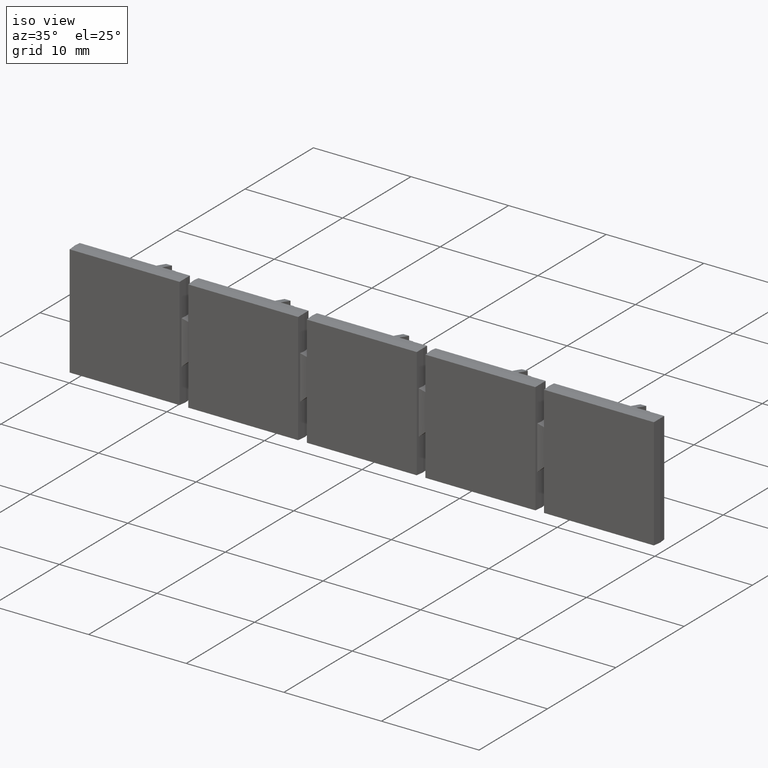
[diagram: clean part render]
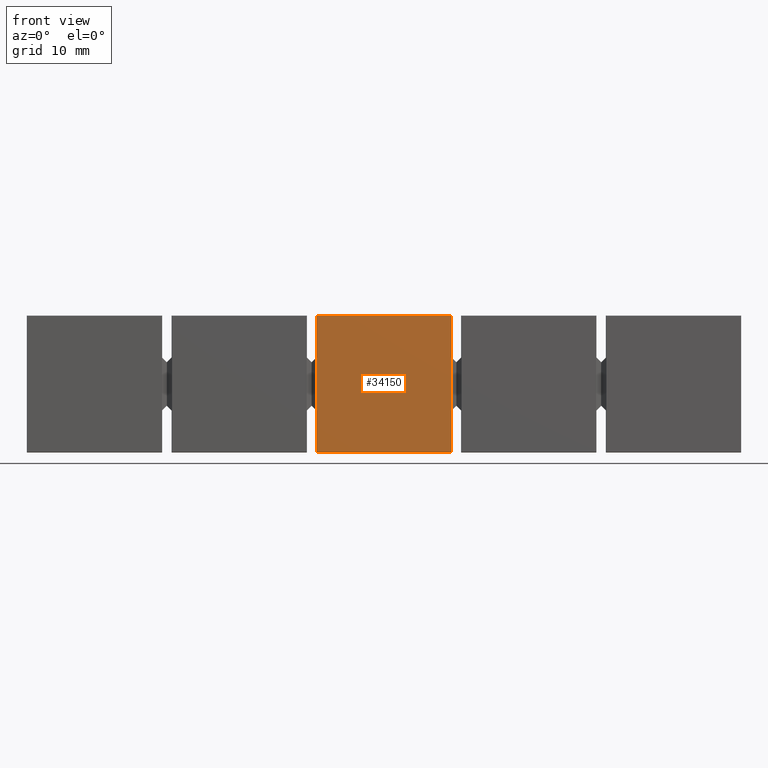
[diagram: tour spotlight — one face highlighted and labeled with its STEP entity id]
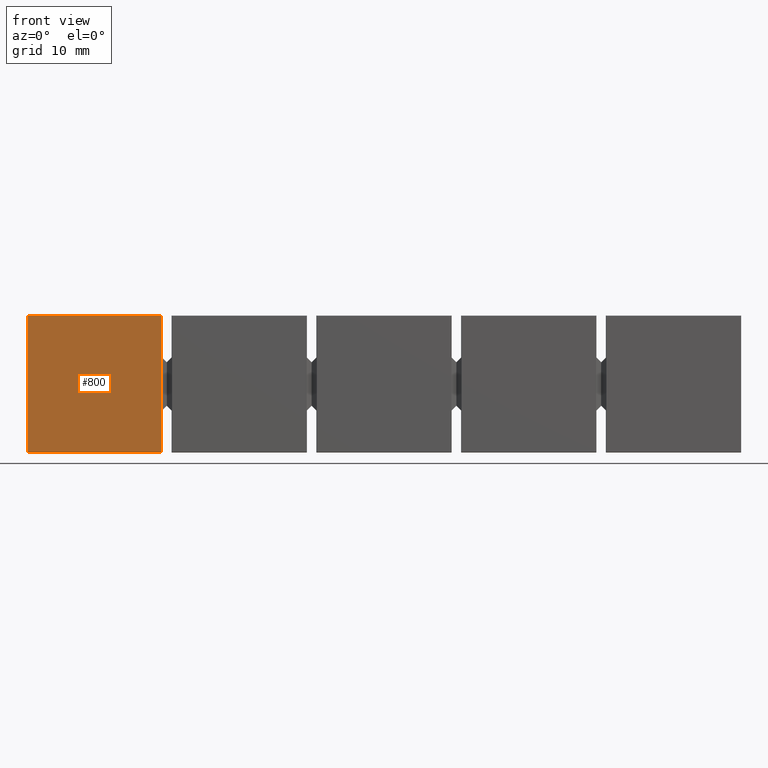
[diagram: tour spotlight — one face highlighted and labeled with its STEP entity id]
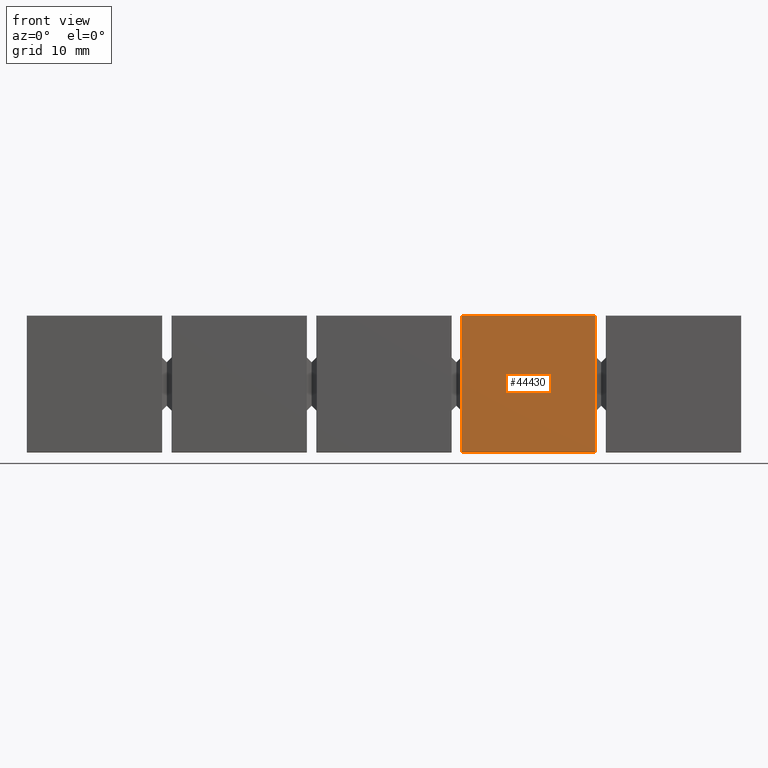
[diagram: tour spotlight — one face highlighted and labeled with its STEP entity id]
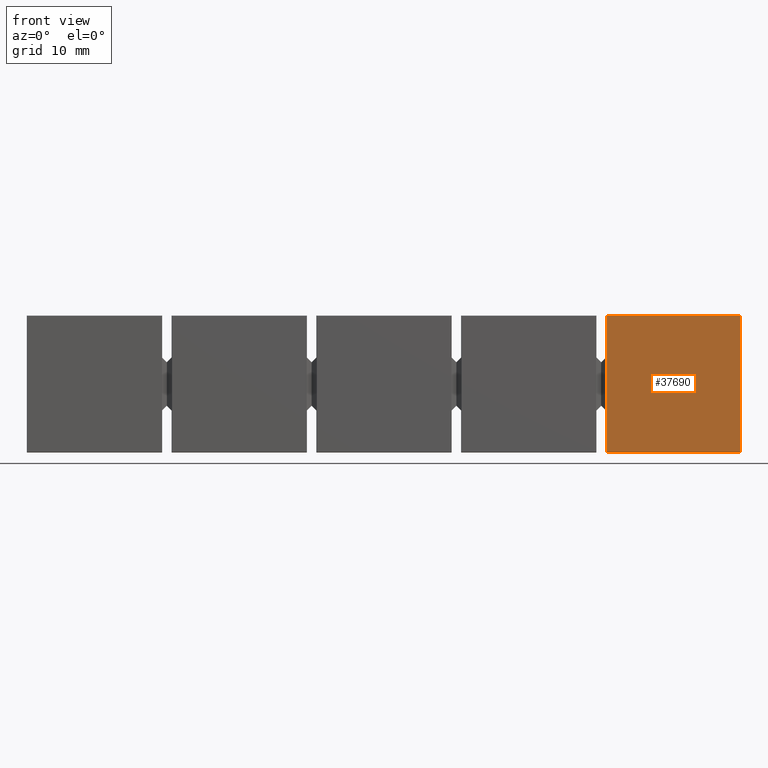
[diagram: tour spotlight — one face highlighted and labeled with its STEP entity id]
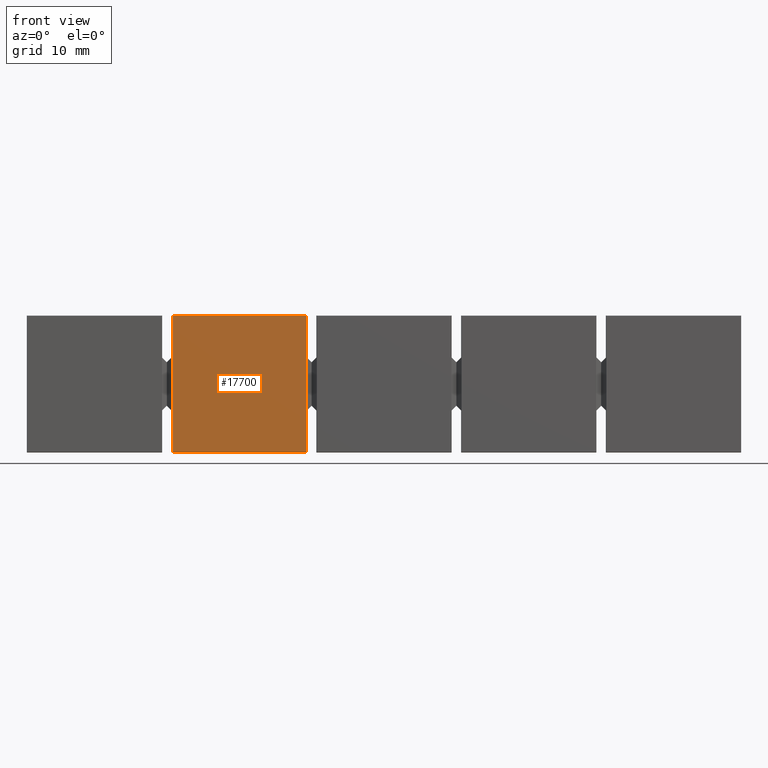
[diagram: tour spotlight — one face highlighted and labeled with its STEP entity id]
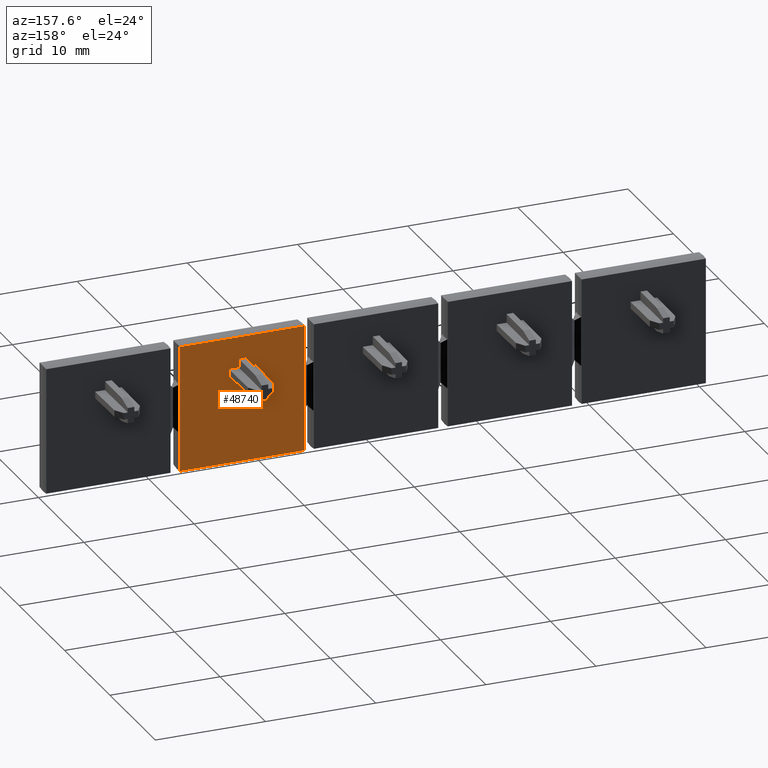
[diagram: tour spotlight — one face highlighted and labeled with its STEP entity id]
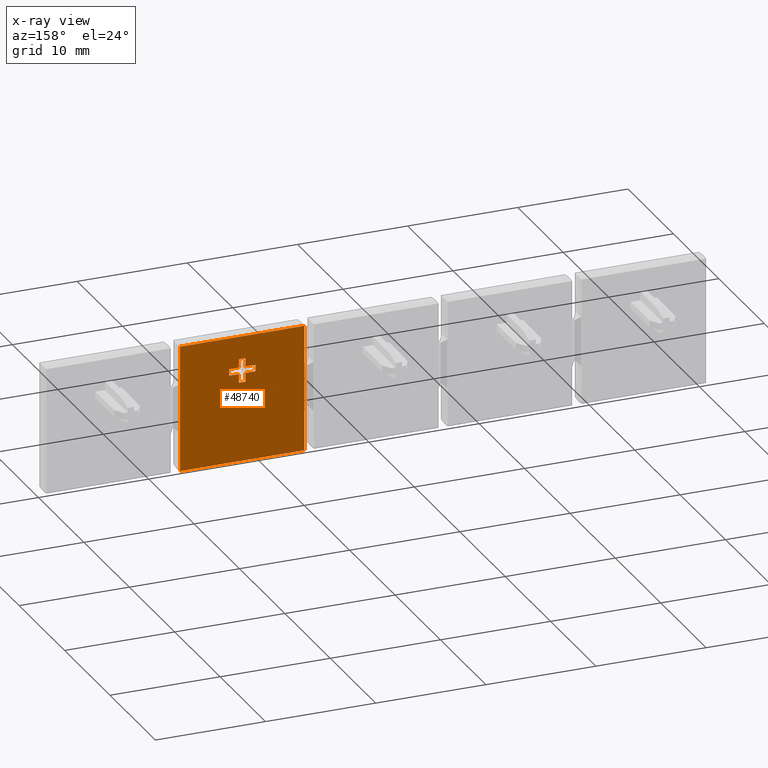
[diagram: x-ray of the same camera — body ghosted, this tour face saturated]
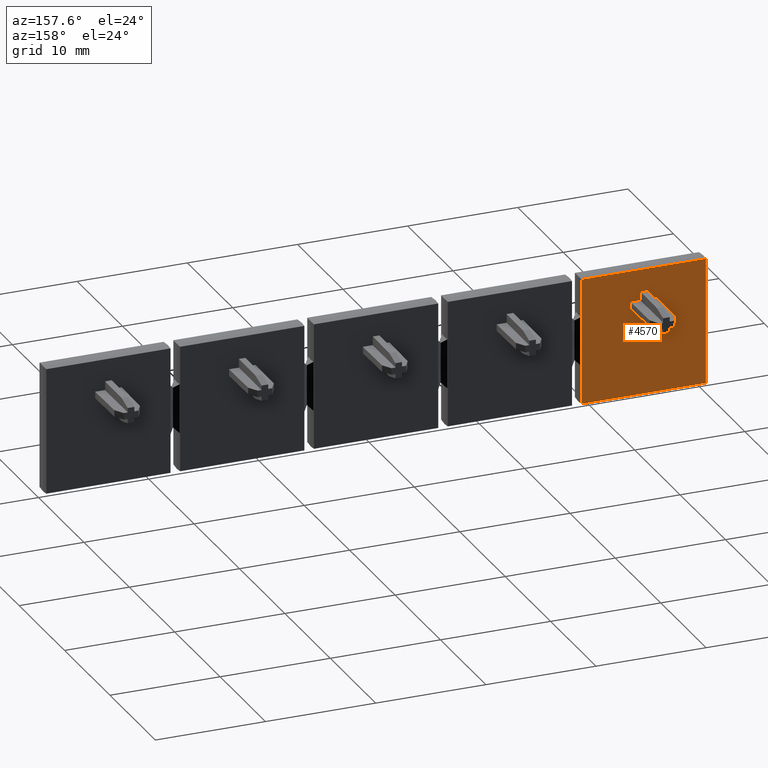
[diagram: tour spotlight — one face highlighted and labeled with its STEP entity id]
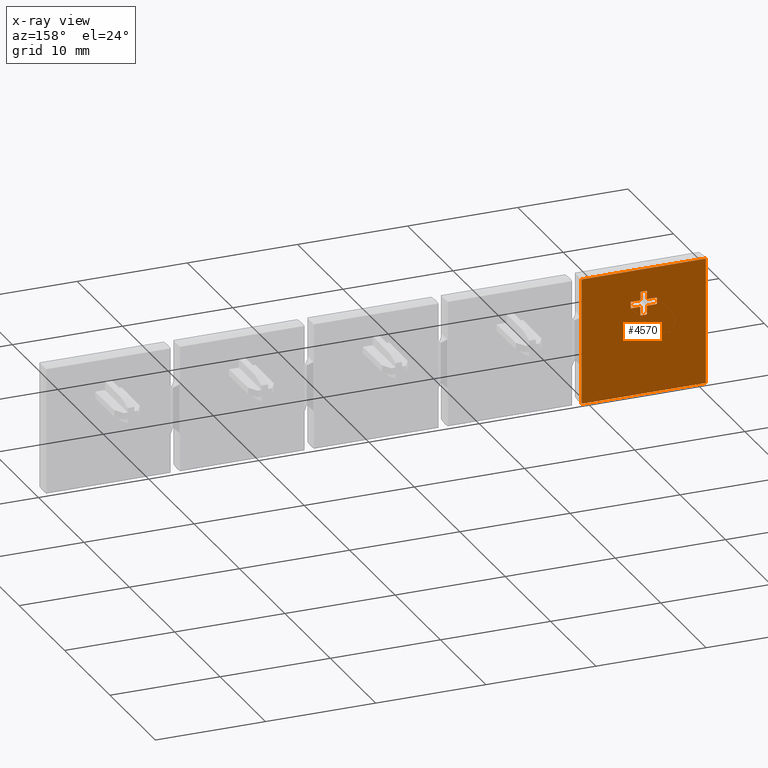
[diagram: x-ray of the same camera — body ghosted, this tour face saturated]
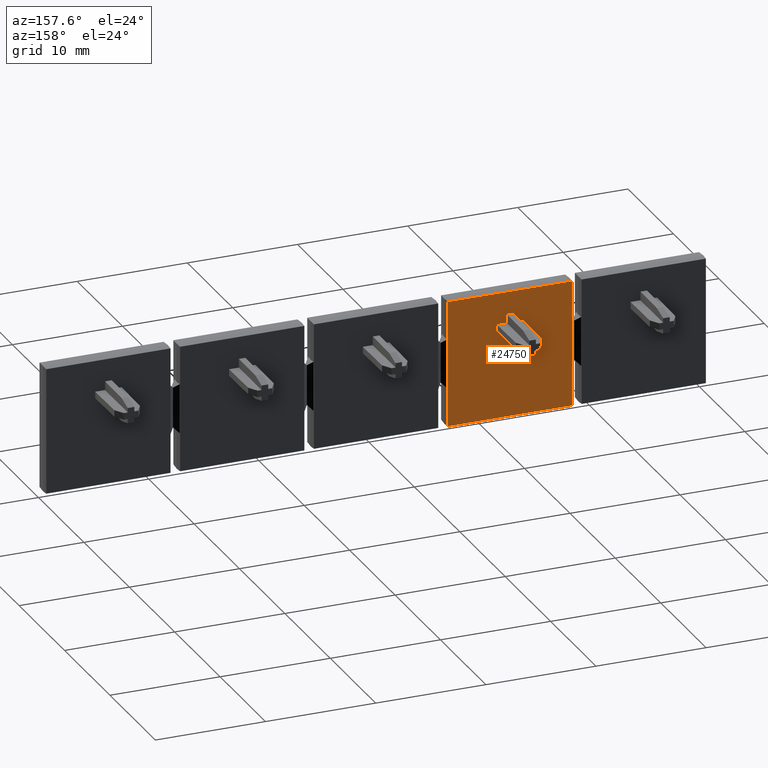
[diagram: tour spotlight — one face highlighted and labeled with its STEP entity id]
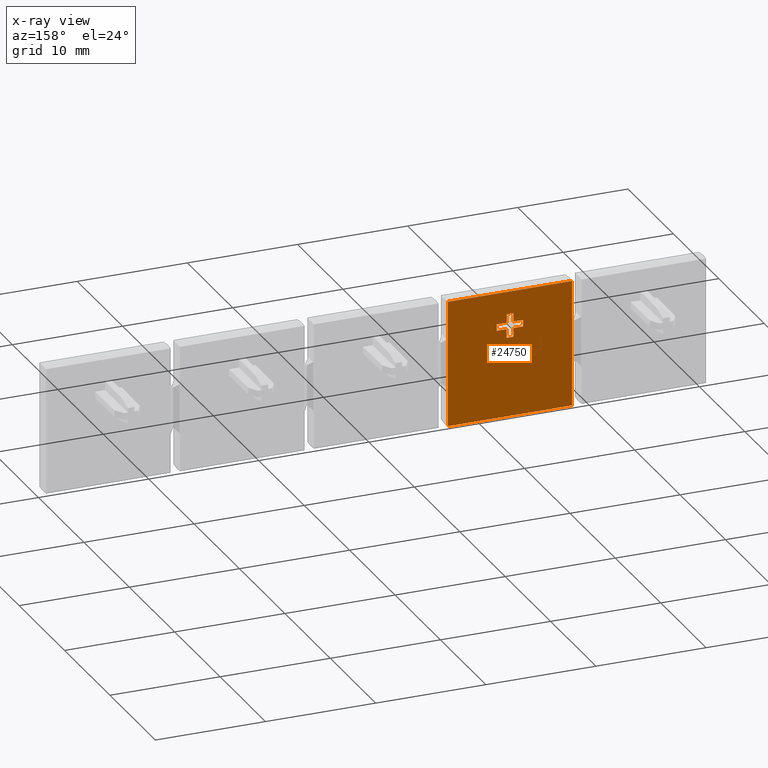
[diagram: x-ray of the same camera — body ghosted, this tour face saturated]
A machine part: a face-by-face anatomy tour. The part has 167 B-rep faces; the first image is the clean iso view, then the 8 largest visible faces are spotlighted one at a time (largest first), each with its STEP entity span.

Face 1 — front view, entity #34150. In plain terms, the highlighted planar face has unit normal (-0, -1, 0).
Definition (entity closure, byte-faithful):
#27400=CARTESIAN_POINT('',(25.1869785549055,4.41950785562666,
32.349763121726));
#27410=DIRECTION('',(-1.,1.95375257496095E-24,2.11420675839844E-12));
#27420=VECTOR('',#27410,1.);
#27430=LINE('',#27400,#27420);
#27440=CARTESIAN_POINT('',(24.5724989468758,4.41950785562666,
32.3497631217273));
#27450=VERTEX_POINT('',#27440);
#27460=CARTESIAN_POINT('',(13.1629727239028,4.41950785562668,
32.3497631217514));
#27470=VERTEX_POINT('',#27460);
#27480=EDGE_CURVE('',#27450,#27470,#27430,.T.);
#29270=CARTESIAN_POINT('',(13.162972723879,4.41950785562208,
21.0902368782979));
#29280=VERTEX_POINT('',#29270);
#29310=CARTESIAN_POINT('',(13.1629727239478,4.41950785563537,
53.670000000052));
#29320=DIRECTION('',(2.11383437872987E-12,4.08396006638896E-13,1.));
#29330=VECTOR('',#29320,1.);
#29340=LINE('',#29310,#29330);
#29350=EDGE_CURVE('',#29280,#27470,#29340,.T.);
#33300=CARTESIAN_POINT('',(24.572498946852,4.41950785562206,
21.0902368782738));
#33310=VERTEX_POINT('',#33300);
#33340=CARTESIAN_POINT('',(25.1869785549356,4.41950785562207,
21.0902368782725));
#33350=DIRECTION('',(1.,-1.95344841822176E-24,-2.1134619990613E-12));
#33360=VECTOR('',#33350,1.);
#33370=LINE('',#33340,#33360);
#33380=EDGE_CURVE('',#29280,#33310,#33370,.T.);
#33990=CARTESIAN_POINT('',(18.0177358661239,4.4195078556244,
26.7950000000223));
#34000=DIRECTION('',(1.09031897762206E-24,1.,-4.08396006638896E-13));
#34010=DIRECTION('',(-1.,0.,-2.6697591550794E-12));
#34020=AXIS2_PLACEMENT_3D('',#33990,#34000,#34010);
#34030=PLANE('',#34020);
#34040=ORIENTED_EDGE('',*,*,#29350,.T.);
#34050=ORIENTED_EDGE('',*,*,#33380,.F.);
#34060=CARTESIAN_POINT('',(24.5724989469209,4.41950785563537,
53.6700000000825));
#34070=DIRECTION('',(2.11383437872987E-12,4.08396006638896E-13,1.));
#34080=VECTOR('',#34070,1.);
#34090=LINE('',#34060,#34080);
#34100=EDGE_CURVE('',#33310,#27450,#34090,.T.);
#34110=ORIENTED_EDGE('',*,*,#34100,.F.);
#34120=ORIENTED_EDGE('',*,*,#27480,.F.);
#34130=EDGE_LOOP('',(#34120,#34110,#34050,#34040));
#34140=FACE_OUTER_BOUND('',#34130,.T.);
#34150=ADVANCED_FACE('',(#34140),#34030,.T.);

Face 2 — front view, entity #800. In plain terms, the highlighted planar face has unit normal (-0, -1, 0).
Definition (entity closure, byte-faithful):
#410=CARTESIAN_POINT('',(19.2111722116261,4.41950785552249,
51.0950000000255));
#420=DIRECTION('',(1.09031897762206E-24,1.,-4.08396006638896E-13));
#430=DIRECTION('',(-1.,0.,-2.6697591550794E-12));
#440=AXIS2_PLACEMENT_3D('',#410,#420,#430);
#450=PLANE('',#440);
#460=CARTESIAN_POINT('',(24.5724989468776,4.41950785552354,
53.6700000000825));
#470=DIRECTION('',(2.11383437872987E-12,4.08396006638896E-13,1.));
#480=VECTOR('',#470,1.);
#490=LINE('',#460,#480);
#500=CARTESIAN_POINT('',(24.5724989468601,4.41950785552016,
45.390236878268));
#510=VERTEX_POINT('',#500);
#520=CARTESIAN_POINT('',(24.5724989468839,4.41950785552476,
56.6497631217273));
#530=VERTEX_POINT('',#520);
#540=EDGE_CURVE('',#510,#530,#490,.T.);
#550=ORIENTED_EDGE('',*,*,#540,.F.);
#560=CARTESIAN_POINT('',(25.1869785548406,4.41950785552476,
56.6497631217319));
#570=DIRECTION('',(-1.,1.95375257496095E-24,2.11420675839844E-12));
#580=VECTOR('',#570,1.);
#590=LINE('',#560,#580);
#600=CARTESIAN_POINT('',(13.1629727238992,4.41950785552476,
56.6497631217514));
#610=VERTEX_POINT('',#600);
#620=EDGE_CURVE('',#530,#610,#590,.T.);
#630=ORIENTED_EDGE('',*,*,#620,.F.);
#640=CARTESIAN_POINT('',(13.1629727238929,4.41950785552354,
53.670000000052));
#650=DIRECTION('',(2.11383437872987E-12,4.08396006638896E-13,1.));
#660=VECTOR('',#650,1.);
#670=LINE('',#640,#660);
#680=CARTESIAN_POINT('',(13.1629727238754,4.41950785552016,
45.3902368782979));
#690=VERTEX_POINT('',#680);
#700=EDGE_CURVE('',#690,#610,#670,.T.);
#710=ORIENTED_EDGE('',*,*,#700,.T.);
#720=CARTESIAN_POINT('',(25.1869785548707,4.41950785552016,
45.3902368782667));
#730=DIRECTION('',(1.,-1.95344841822176E-24,-2.1134619990613E-12));
#740=VECTOR('',#730,1.);
#750=LINE('',#720,#740);
#760=EDGE_CURVE('',#690,#510,#750,.T.);
#770=ORIENTED_EDGE('',*,*,#760,.F.);
#780=EDGE_LOOP('',(#770,#710,#630,#550));
#790=FACE_OUTER_BOUND('',#780,.T.);
#800=ADVANCED_FACE('',(#790),#450,.T.);

Face 3 — front view, entity #44430. In plain terms, the highlighted planar face has unit normal (-0, -1, 0).
Definition (entity closure, byte-faithful):
#38160=CARTESIAN_POINT('',(25.1869785549379,4.4195078556217,
20.199763121726));
#38170=DIRECTION('',(-1.,1.95375257496095E-24,2.11420675839844E-12));
#38180=VECTOR('',#38170,1.);
#38190=LINE('',#38160,#38180);
#38200=CARTESIAN_POINT('',(24.5724989468747,4.4195078556217,
20.1997631217273));
#38210=VERTEX_POINT('',#38200);
#38220=CARTESIAN_POINT('',(13.1629727239016,4.4195078556217,
20.1997631217514));
#38230=VERTEX_POINT('',#38220);
#38240=EDGE_CURVE('',#38210,#38230,#38190,.T.);
#39760=CARTESIAN_POINT('',(13.1629727238778,4.41950785561711,
8.94023687829792));
#39770=VERTEX_POINT('',#39760);
#39800=CARTESIAN_POINT('',(13.1629727239724,4.41950785563538,
53.670000000052));
#39810=DIRECTION('',(2.11383437872987E-12,4.08396006638896E-13,1.));
#39820=VECTOR('',#39810,1.);
#39830=LINE('',#39800,#39820);
#39840=EDGE_CURVE('',#39770,#38230,#39830,.T.);
#43880=CARTESIAN_POINT('',(24.5724989468509,4.4195078556171,
8.94023687827382));
#43890=VERTEX_POINT('',#43880);
#43920=CARTESIAN_POINT('',(25.186978554968,4.41950785561711,
8.94023687827251));
#43930=DIRECTION('',(1.,-1.95344841822176E-24,-2.1134619990613E-12));
#43940=VECTOR('',#43930,1.);
#43950=LINE('',#43920,#43940);
#43960=EDGE_CURVE('',#39770,#43890,#43950,.T.);
#44270=CARTESIAN_POINT('',(18.0177358661227,4.41950785561944,
14.6450000000223));
#44280=DIRECTION('',(1.09031897762206E-24,1.,-4.08396006638896E-13));
#44290=DIRECTION('',(-1.,0.,-2.6697591550794E-12));
#44300=AXIS2_PLACEMENT_3D('',#44270,#44280,#44290);
#44310=PLANE('',#44300);
#44320=CARTESIAN_POINT('',(24.5724989469454,4.41950785563537,
53.6700000000825));
#44330=DIRECTION('',(2.11383437872987E-12,4.08396006638896E-13,1.));
#44340=VECTOR('',#44330,1.);
#44350=LINE('',#44320,#44340);
#44360=EDGE_CURVE('',#43890,#38210,#44350,.T.);
#44370=ORIENTED_EDGE('',*,*,#44360,.F.);
#44380=ORIENTED_EDGE('',*,*,#38240,.F.);
#44390=ORIENTED_EDGE('',*,*,#39840,.T.);
#44400=ORIENTED_EDGE('',*,*,#43960,.F.);
#44410=EDGE_LOOP('',(#44400,#44390,#44380,#44370));
#44420=FACE_OUTER_BOUND('',#44410,.T.);
#44430=ADVANCED_FACE('',(#44420),#44310,.T.);

Face 4 — front view, entity #37690. In plain terms, the highlighted planar face has unit normal (-0, -1, 0).
Definition (entity closure, byte-faithful):
#37300=CARTESIAN_POINT('',(18.0177358661216,4.41950785561447,
2.4950000000223));
#37310=DIRECTION('',(1.09031897762206E-24,1.,-4.08396006638896E-13));
#37320=DIRECTION('',(-1.,0.,-2.6697591550794E-12));
#37330=AXIS2_PLACEMENT_3D('',#37300,#37310,#37320);
#37340=PLANE('',#37330);
#37350=CARTESIAN_POINT('',(13.1629727239969,4.41950785563537,
53.670000000052));
#37360=DIRECTION('',(2.11383437872987E-12,4.08396006638896E-13,1.));
#37370=VECTOR('',#37360,1.);
#37380=LINE('',#37350,#37370);
#37390=CARTESIAN_POINT('',(13.1629727238767,4.41950785561214,
-3.20976312170207));
#37400=VERTEX_POINT('',#37390);
#37410=CARTESIAN_POINT('',(13.1629727239005,4.41950785561674,
8.04976312175142));
#37420=VERTEX_POINT('',#37410);
#37430=EDGE_CURVE('',#37400,#37420,#37380,.T.);
#37440=ORIENTED_EDGE('',*,*,#37430,.T.);
#37450=CARTESIAN_POINT('',(25.1869785550004,4.41950785561214,
-3.20976312172748));
#37460=DIRECTION('',(1.,-1.95344841822176E-24,-2.1134619990613E-12));
#37470=VECTOR('',#37460,1.);
#37480=LINE('',#37450,#37470);
#37490=CARTESIAN_POINT('',(24.5724989468498,4.41950785561214,
-3.20976312172618));
#37500=VERTEX_POINT('',#37490);
#37510=EDGE_CURVE('',#37400,#37500,#37480,.T.);
#37520=ORIENTED_EDGE('',*,*,#37510,.F.);
#37530=CARTESIAN_POINT('',(24.57249894697,4.41950785563537,
53.6700000000825));
#37540=DIRECTION('',(2.11383437872987E-12,4.08396006638896E-13,1.));
#37550=VECTOR('',#37540,1.);
#37560=LINE('',#37530,#37550);
#37570=CARTESIAN_POINT('',(24.5724989468736,4.41950785561674,
8.0497631217273));
#37580=VERTEX_POINT('',#37570);
#37590=EDGE_CURVE('',#37500,#37580,#37560,.T.);
#37600=ORIENTED_EDGE('',*,*,#37590,.F.);
#37610=CARTESIAN_POINT('',(25.1869785549704,4.41950785561674,
8.049763121726));
#37620=DIRECTION('',(-1.,1.95375257496095E-24,2.11420675839844E-12));
#37630=VECTOR('',#37620,1.);
#37640=LINE('',#37610,#37630);
#37650=EDGE_CURVE('',#37580,#37420,#37640,.T.);
#37660=ORIENTED_EDGE('',*,*,#37650,.F.);
#37670=EDGE_LOOP('',(#37660,#37600,#37520,#37440));
#37680=FACE_OUTER_BOUND('',#37670,.T.);
#37690=ADVANCED_FACE('',(#37680),#37340,.T.);

Face 5 — front view, entity #17700. In plain terms, the highlighted planar face has unit normal (-0, -1, 0).
Definition (entity closure, byte-faithful):
#8470=CARTESIAN_POINT('',(25.1869785548731,4.41950785563163,
44.499763121726));
#8480=DIRECTION('',(-1.,1.95375257496095E-24,2.11420675839844E-12));
#8490=VECTOR('',#8480,1.);
#8500=LINE('',#8470,#8490);
#8510=CARTESIAN_POINT('',(24.5724989468769,4.41950785563163,
44.4997631217273));
#8520=VERTEX_POINT('',#8510);
#8530=CARTESIAN_POINT('',(13.1629727239039,4.41950785563163,
44.4997631217514));
#8540=VERTEX_POINT('',#8530);
#8550=EDGE_CURVE('',#8520,#8540,#8500,.T.);
#11290=CARTESIAN_POINT('',(13.1629727238801,4.41950785562703,
33.2402368782979));
#11300=VERTEX_POINT('',#11290);
#11330=CARTESIAN_POINT('',(13.1629727239233,4.41950785563537,
53.670000000052));
#11340=DIRECTION('',(2.11383437872987E-12,4.08396006638896E-13,1.));
#11350=VECTOR('',#11340,1.);
#11360=LINE('',#11330,#11350);
#11370=EDGE_CURVE('',#11300,#8540,#11360,.T.);
#16050=CARTESIAN_POINT('',(24.5724989468531,4.41950785562703,
33.2402368782738));
#16060=VERTEX_POINT('',#16050);
#16090=CARTESIAN_POINT('',(25.1869785549031,4.41950785562703,
33.2402368782725));
#16100=DIRECTION('',(1.,-1.95344841822176E-24,-2.1134619990613E-12));
#16110=VECTOR('',#16100,1.);
#16120=LINE('',#16090,#16110);
#16130=EDGE_CURVE('',#11300,#16060,#16120,.T.);
#17540=CARTESIAN_POINT('',(18.017735866125,4.41950785562936,
38.9450000000223));
#17550=DIRECTION('',(1.09031897762206E-24,1.,-4.08396006638896E-13));
#17560=DIRECTION('',(-1.,0.,-2.6697591550794E-12));
#17570=AXIS2_PLACEMENT_3D('',#17540,#17550,#17560);
#17580=PLANE('',#17570);
#17590=CARTESIAN_POINT('',(24.5724989468963,4.41950785563537,
53.6700000000825));
#17600=DIRECTION('',(2.11383437872987E-12,4.08396006638896E-13,1.));
#17610=VECTOR('',#17600,1.);
#17620=LINE('',#17590,#17610);
#17630=EDGE_CURVE('',#16060,#8520,#17620,.T.);
#17640=ORIENTED_EDGE('',*,*,#17630,.F.);
#17650=ORIENTED_EDGE('',*,*,#8550,.F.);
#17660=ORIENTED_EDGE('',*,*,#11370,.T.);
#17670=ORIENTED_EDGE('',*,*,#16130,.F.);
#17680=EDGE_LOOP('',(#17670,#17660,#17650,#17640));
#17690=FACE_OUTER_BOUND('',#17680,.T.);
#17700=ADVANCED_FACE('',(#17690),#17580,.T.);

Face 6 — auxiliary view, entity #48740. An x-ray twin of the same camera follows (body ghosted, this face saturated) — the face is partly hidden behind the body. In plain terms, the highlighted planar face has unit normal (0, 1, -0).
Definition (entity closure, byte-faithful):
#17190=CARTESIAN_POINT('',(25.1869785549498,2.91950785561962,
15.7699999999805));
#17200=DIRECTION('',(1.,-6.29799242864677E-15,2.67120862381053E-12));
#17210=VECTOR('',#17200,1.);
#17220=LINE('',#17190,#17210);
#17230=CARTESIAN_POINT('',(15.9677358661469,2.91950785561967,
15.7699999999559));
#17240=VERTEX_POINT('',#17230);
#17250=CARTESIAN_POINT('',(16.5677358661469,2.91950785561967,
15.7699999999566));
#17260=VERTEX_POINT('',#17250);
#17270=EDGE_CURVE('',#17240,#17260,#17220,.T.);
#21810=CARTESIAN_POINT('',(25.1869785549538,2.919507855619,
14.270000000009));
#21820=DIRECTION('',(1.,-6.29799242864736E-15,2.66975915507941E-12));
#21830=VECTOR('',#21820,1.);
#21840=LINE('',#21810,#21830);
#21850=CARTESIAN_POINT('',(16.5677358661509,2.91950785561906,
14.2699999999859));
#21860=VERTEX_POINT('',#21850);
#21870=CARTESIAN_POINT('',(17.367735866163,2.91950785561905,
14.2699999999881));
#21880=VERTEX_POINT('',#21870);
#21890=EDGE_CURVE('',#21860,#21880,#21840,.T.);
#28270=CARTESIAN_POINT('',(25.1869785549522,2.91950785561925,
14.8700000000089));
#28280=DIRECTION('',(-1.,6.29799242864736E-15,-2.66975915507941E-12));
#28290=VECTOR('',#28280,1.);
#28300=LINE('',#28270,#28290);
#28310=CARTESIAN_POINT('',(15.9677358661493,2.9195078556193,
14.8699999999843));
#28320=VERTEX_POINT('',#28310);
#28330=CARTESIAN_POINT('',(15.1677358661382,2.91950785561931,
14.8699999999822));
#28340=VERTEX_POINT('',#28330);
#28350=EDGE_CURVE('',#28320,#28340,#28300,.T.);
#28660=CARTESIAN_POINT('',(15.9677358660457,2.91950785563515,
53.6700000000601));
#28670=DIRECTION('',(2.6697591550794E-12,-4.08396006638927E-13,-1.));
#28680=VECTOR('',#28670,1.);
#28690=LINE('',#28660,#28680);
#28700=CARTESIAN_POINT('',(15.9677358661509,2.91950785561906,
14.2699999999843));
#28710=VERTEX_POINT('',#28700);
#28720=CARTESIAN_POINT('',(15.9677358661533,2.91950785561869,
13.3700000000127));
#28730=VERTEX_POINT('',#28720);
#28740=EDGE_CURVE('',#28710,#28730,#28690,.T.);
#31790=CARTESIAN_POINT('',(16.5677358661533,2.91950785561869,
13.3700000000143));
#31800=VERTEX_POINT('',#31790);
#31830=CARTESIAN_POINT('',(25.1869785549562,2.91950785561863,
13.3700000000373));
#31840=DIRECTION('',(-1.,6.29799242864795E-15,-2.66830968634828E-12));
#31850=VECTOR('',#31840,1.);
#31860=LINE('',#31830,#31850);
#31870=EDGE_CURVE('',#31800,#28730,#31860,.T.);
#33730=CARTESIAN_POINT('',(17.3677358660578,2.91950785563514,
53.6700000000639));
#33740=DIRECTION('',(2.66963668573623E-12,-4.08396006638927E-13,-1.));
#33750=VECTOR('',#33740,1.);
#33760=LINE('',#33730,#33750);
#33770=CARTESIAN_POINT('',(17.3677358661614,2.9195078556193,
14.8699999999881));
#33780=VERTEX_POINT('',#33770);
#33790=EDGE_CURVE('',#33780,#21880,#33760,.T.);
#37970=CARTESIAN_POINT('',(15.1677358661398,2.91950785561907,
14.2699999999822));
#37980=VERTEX_POINT('',#37970);
#38010=CARTESIAN_POINT('',(15.1677358660336,2.91950785563515,
53.670000000058));
#38020=DIRECTION('',(-2.66988162442258E-12,4.08396006638927E-13,1.));
#38030=VECTOR('',#38020,1.);
#38040=LINE('',#38010,#38030);
#38050=EDGE_CURVE('',#37980,#28340,#38040,.T.);
#38650=CARTESIAN_POINT('',(13.1511106772693,2.9195078556215,
20.211625209376));
#38660=VERTEX_POINT('',#38650);
#38780=CARTESIAN_POINT('',(24.5843610344987,2.91950785562143,
20.2116252093518));
#38790=VERTEX_POINT('',#38780);
#38820=CARTESIAN_POINT('',(25.1869785549379,2.91950785562143,
20.2116252093506));
#38830=DIRECTION('',(-1.,6.29799243060081E-15,2.11341968318976E-12));
#38840=VECTOR('',#38830,1.);
#38850=LINE('',#38820,#38840);
#38860=EDGE_CURVE('',#38790,#38660,#38850,.T.);
#40200=CARTESIAN_POINT('',(13.15111067734,2.91950785563517,
53.6700000000526));
#40210=DIRECTION('',(-2.1134619990612E-12,-4.08396006638896E-13,-1.));
#40220=VECTOR('',#40210,1.);
#40230=LINE('',#40200,#40220);
#40240=CARTESIAN_POINT('',(13.1511106772455,2.9195078556169,
8.92837479067457));
#40250=VERTEX_POINT('',#40240);
#40260=EDGE_CURVE('',#38660,#40250,#40230,.T.);
#40680=CARTESIAN_POINT('',(16.5677358660457,2.91950785563515,
53.6700000000617));
#40690=DIRECTION('',(-2.6697591550794E-12,4.08396006638927E-13,1.));
#40700=VECTOR('',#40690,1.);
#40710=LINE('',#40680,#40700);
#40720=EDGE_CURVE('',#31800,#21860,#40710,.T.);
#41290=CARTESIAN_POINT('',(25.1869785549538,2.919507855619,
14.2700000000089));
#41300=DIRECTION('',(1.,-6.29799242864736E-15,2.66975915507941E-12));
#41310=VECTOR('',#41300,1.);
#41320=LINE('',#41290,#41310);
#41330=EDGE_CURVE('',#37980,#28710,#41320,.T.);
#41520=CARTESIAN_POINT('',(24.5843610344748,2.91950785561682,
8.92837479065042));
#41530=VERTEX_POINT('',#41520);
#41820=CARTESIAN_POINT('',(25.186978554968,2.91950785561682,
8.92837479064914));
#41830=DIRECTION('',(1.,-6.29799243060085E-15,-2.11350431493264E-12));
#41840=VECTOR('',#41830,1.);
#41850=LINE('',#41820,#41840);
#41860=EDGE_CURVE('',#40250,#41530,#41850,.T.);
#43110=CARTESIAN_POINT('',(24.5843610345694,2.9195078556351,
53.6700000000831));
#43120=DIRECTION('',(2.1134619990612E-12,4.08396006638896E-13,1.));
#43130=VECTOR('',#43120,1.);
#43140=LINE('',#43110,#43130);
#43150=EDGE_CURVE('',#41530,#38790,#43140,.T.);
#46650=CARTESIAN_POINT('',(15.9677358660457,2.91950785563515,
53.6700000000601));
#46660=DIRECTION('',(2.6697591550794E-12,-4.08396006638927E-13,-1.));
#46670=VECTOR('',#46660,1.);
#46680=LINE('',#46650,#46670);
#46690=EDGE_CURVE('',#17240,#28320,#46680,.T.);
#48370=CARTESIAN_POINT('',(19.517735845649,2.91950785562231,
22.2950000205383));
#48380=DIRECTION('',(-6.29799242973768E-15,-1.,4.0839600663891E-13));
#48390=DIRECTION('',(-1.,6.29799243060089E-15,2.11364818889553E-12));
#48400=AXIS2_PLACEMENT_3D('',#48370,#48380,#48390);
#48410=PLANE('',#48400);
#48420=CARTESIAN_POINT('',(16.5677358660457,2.91950785563515,
53.6700000000617));
#48430=DIRECTION('',(-2.6697591550794E-12,4.08396006638927E-13,1.));
#48440=VECTOR('',#48430,1.);
#48450=LINE('',#48420,#48440);
#48460=CARTESIAN_POINT('',(16.5677358661493,2.9195078556193,
14.869999999986));
#48470=VERTEX_POINT('',#48460);
#48480=EDGE_CURVE('',#48470,#17260,#48450,.T.);
#48490=ORIENTED_EDGE('',*,*,#48480,.F.);
#48500=ORIENTED_EDGE('',*,*,#17270,.T.);
#48510=ORIENTED_EDGE('',*,*,#46690,.F.);
#48520=ORIENTED_EDGE('',*,*,#28350,.F.);
#48530=ORIENTED_EDGE('',*,*,#38050,.T.);
#48540=ORIENTED_EDGE('',*,*,#41330,.F.);
#48550=ORIENTED_EDGE('',*,*,#28740,.F.);
#48560=ORIENTED_EDGE('',*,*,#31870,.T.);
#48570=ORIENTED_EDGE('',*,*,#40720,.F.);
#48580=ORIENTED_EDGE('',*,*,#21890,.F.);
#48590=ORIENTED_EDGE('',*,*,#33790,.T.);
#48600=CARTESIAN_POINT('',(25.1869785549522,2.91950785561925,
14.870000000009));
#48610=DIRECTION('',(-1.,6.29799242864736E-15,-2.66975915507941E-12));
#48620=VECTOR('',#48610,1.);
#48630=LINE('',#48600,#48620);
#48640=EDGE_CURVE('',#33780,#48470,#48630,.T.);
#48650=ORIENTED_EDGE('',*,*,#48640,.F.);
#48660=EDGE_LOOP('',(#48650,#48590,#48580,#48570,#48560,#48550,#48540,
#48530,#48520,#48510,#48500,#48490));
#48670=FACE_BOUND('',#48660,.T.);
#48680=ORIENTED_EDGE('',*,*,#43150,.T.);
#48690=ORIENTED_EDGE('',*,*,#41860,.T.);
#48700=ORIENTED_EDGE('',*,*,#40260,.T.);
#48710=ORIENTED_EDGE('',*,*,#38860,.T.);
#48720=EDGE_LOOP('',(#48710,#48700,#48690,#48680));
#48730=FACE_OUTER_BOUND('',#48720,.T.);
#48740=ADVANCED_FACE('',(#48670,#48730),#48410,.T.);

Face 7 — auxiliary view, entity #4570. An x-ray twin of the same camera follows (body ghosted, this face saturated) — the face is partly hidden behind the body. In plain terms, the highlighted planar face has unit normal (0, 1, -0).
Definition (entity closure, byte-faithful):
#920=CARTESIAN_POINT('',(13.1511106772727,2.91950785563639,
56.661625209376));
#930=VERTEX_POINT('',#920);
#960=CARTESIAN_POINT('',(13.1511106772664,2.91950785563516,
53.6700000000526));
#970=DIRECTION('',(-2.1134619990612E-12,-4.08396006638896E-13,-1.));
#980=VECTOR('',#970,1.);
#990=LINE('',#960,#980);
#1000=CARTESIAN_POINT('',(13.1511106772489,2.91950785563178,
45.3783747906746));
#1010=VERTEX_POINT('',#1000);
#1020=EDGE_CURVE('',#930,#1010,#990,.T.);
#2850=CARTESIAN_POINT('',(16.5677358661567,2.91950785563357,
49.8200000000144));
#2860=VERTEX_POINT('',#2850);
#2890=CARTESIAN_POINT('',(25.1869785548589,2.91950785563352,
49.8200000000374));
#2900=DIRECTION('',(-1.,6.29799242864795E-15,-2.66830968634828E-12));
#2910=VECTOR('',#2900,1.);
#2920=LINE('',#2890,#2910);
#2930=CARTESIAN_POINT('',(15.9677358661567,2.91950785563357,
49.8200000000128));
#2940=VERTEX_POINT('',#2930);
#2950=EDGE_CURVE('',#2860,#2940,#2920,.T.);
#3280=CARTESIAN_POINT('',(15.9677358661464,2.91950785563515,
53.6700000000601));
#3290=DIRECTION('',(2.6697591550794E-12,-4.08396006638927E-13,-1.));
#3300=VECTOR('',#3290,1.);
#3310=LINE('',#3280,#3300);
#3320=CARTESIAN_POINT('',(15.9677358661543,2.91950785563394,
50.7199999999843));
#3330=VERTEX_POINT('',#3320);
#3340=EDGE_CURVE('',#3330,#2940,#3310,.T.);
#3450=CARTESIAN_POINT('',(19.5177358456524,2.9195078556372,
58.7450000205383));
#3460=DIRECTION('',(-6.29799242973768E-15,-1.,4.0839600663891E-13));
#3470=DIRECTION('',(-1.,6.29799243060089E-15,2.11364818889553E-12));
#3480=AXIS2_PLACEMENT_3D('',#3450,#3460,#3470);
#3490=PLANE('',#3480);
#3500=CARTESIAN_POINT('',(16.5677358661464,2.91950785563514,
53.6700000000617));
#3510=DIRECTION('',(-2.6697591550794E-12,4.08396006638927E-13,1.));
#3520=VECTOR('',#3510,1.);
#3530=LINE('',#3500,#3520);
#3540=CARTESIAN_POINT('',(16.5677358661527,2.91950785563418,
51.319999999986));
#3550=VERTEX_POINT('',#3540);
#3560=CARTESIAN_POINT('',(16.5677358661503,2.91950785563455,
52.2199999999575));
#3570=VERTEX_POINT('',#3560);
#3580=EDGE_CURVE('',#3550,#3570,#3530,.T.);
#3590=ORIENTED_EDGE('',*,*,#3580,.F.);
#3600=CARTESIAN_POINT('',(25.1869785548525,2.9195078556345,
52.2199999999806));
#3610=DIRECTION('',(1.,-6.29799242864677E-15,2.67120862381053E-12));
#3620=VECTOR('',#3610,1.);
#3630=LINE('',#3600,#3620);
#3640=CARTESIAN_POINT('',(15.9677358661503,2.91950785563455,
52.219999999955));
#3650=VERTEX_POINT('',#3640);
#3660=EDGE_CURVE('',#3650,#3570,#3630,.T.);
#3670=ORIENTED_EDGE('',*,*,#3660,.T.);
#3680=CARTESIAN_POINT('',(15.9677358661464,2.91950785563515,
53.6700000000601));
#3690=DIRECTION('',(2.6697591550794E-12,-4.08396006638927E-13,-1.));
#3700=VECTOR('',#3690,1.);
#3710=LINE('',#3680,#3700);
#3720=CARTESIAN_POINT('',(15.9677358661527,2.91950785563419,
51.3199999999843));
#3730=VERTEX_POINT('',#3720);
#3740=EDGE_CURVE('',#3650,#3730,#3710,.T.);
#3750=ORIENTED_EDGE('',*,*,#3740,.F.);
#3760=CARTESIAN_POINT('',(25.1869785548549,2.91950785563413,
51.320000000009));
#3770=DIRECTION('',(-1.,6.29799242864736E-15,-2.66975915507941E-12));
#3780=VECTOR('',#3770,1.);
#3790=LINE('',#3760,#3780);
#3800=CARTESIAN_POINT('',(15.1677358661416,2.91950785563419,
51.3199999999822));
#3810=VERTEX_POINT('',#3800);
#3820=EDGE_CURVE('',#3730,#3810,#3790,.T.);
#3830=ORIENTED_EDGE('',*,*,#3820,.F.);
#3840=CARTESIAN_POINT('',(15.1677358661344,2.91950785563515,
53.670000000058));
#3850=DIRECTION('',(-2.66988162442258E-12,4.08396006638927E-13,1.));
#3860=VECTOR('',#3850,1.);
#3870=LINE('',#3840,#3860);
#3880=CARTESIAN_POINT('',(15.1677358661422,2.91950785563395,
50.7199999999822));
#3890=VERTEX_POINT('',#3880);
#3900=EDGE_CURVE('',#3890,#3810,#3870,.T.);
#3910=ORIENTED_EDGE('',*,*,#3900,.T.);
#3920=CARTESIAN_POINT('',(25.1869785548565,2.91950785563388,
50.720000000009));
#3930=DIRECTION('',(1.,-6.29799242864736E-15,2.66975915507941E-12));
#3940=VECTOR('',#3930,1.);
#3950=LINE('',#3920,#3940);
#3960=EDGE_CURVE('',#3890,#3330,#3950,.T.);
#3970=ORIENTED_EDGE('',*,*,#3960,.F.);
#3980=ORIENTED_EDGE('',*,*,#3340,.F.);
#3990=ORIENTED_EDGE('',*,*,#2950,.T.);
#4000=CARTESIAN_POINT('',(16.5677358661464,2.91950785563514,
53.6700000000617));
#4010=DIRECTION('',(-2.6697591550794E-12,4.08396006638927E-13,1.));
#4020=VECTOR('',#4010,1.);
#4030=LINE('',#4000,#4020);
#4040=CARTESIAN_POINT('',(16.5677358661543,2.91950785563394,
50.719999999986));
#4050=VERTEX_POINT('',#4040);
#4060=EDGE_CURVE('',#2860,#4050,#4030,.T.);
#4070=ORIENTED_EDGE('',*,*,#4060,.F.);
#4080=CARTESIAN_POINT('',(25.1869785548565,2.91950785563388,
50.720000000009));
#4090=DIRECTION('',(1.,-6.29799242864736E-15,2.66975915507941E-12));
#4100=VECTOR('',#4090,1.);
#4110=LINE('',#4080,#4100);
#4120=CARTESIAN_POINT('',(17.3677358661663,2.91950785563393,
50.7199999999881));
#4130=VERTEX_POINT('',#4120);
#4140=EDGE_CURVE('',#4050,#4130,#4110,.T.);
#4150=ORIENTED_EDGE('',*,*,#4140,.F.);
#4160=CARTESIAN_POINT('',(17.3677358661585,2.91950785563514,
53.6700000000639));
#4170=DIRECTION('',(2.66963668573623E-12,-4.08396006638927E-13,-1.));
#4180=VECTOR('',#4170,1.);
#4190=LINE('',#4160,#4180);
#4200=CARTESIAN_POINT('',(17.3677358661638,2.91950785563418,
51.3199999999881));
#4210=VERTEX_POINT('',#4200);
#4220=EDGE_CURVE('',#4210,#4130,#4190,.T.);
#4230=ORIENTED_EDGE('',*,*,#4220,.T.);
#4240=CARTESIAN_POINT('',(25.1869785548549,2.91950785563413,
51.320000000009));
#4250=DIRECTION('',(-1.,6.29799242864736E-15,-2.66975915507941E-12));
#4260=VECTOR('',#4250,1.);
#4270=LINE('',#4240,#4260);
#4280=EDGE_CURVE('',#4210,#3550,#4270,.T.);
#4290=ORIENTED_EDGE('',*,*,#4280,.F.);
#4300=EDGE_LOOP('',(#4290,#4230,#4150,#4070,#3990,#3980,#3970,#3910,
#3830,#3750,#3670,#3590));
#4310=FACE_BOUND('',#4300,.T.);
#4320=ORIENTED_EDGE('',*,*,#1020,.T.);
#4330=CARTESIAN_POINT('',(25.1869785548406,2.91950785563631,
56.6616252093506));
#4340=DIRECTION('',(-1.,6.29799243060081E-15,2.11341968318976E-12));
#4350=VECTOR('',#4340,1.);
#4360=LINE('',#4330,#4350);
#4370=CARTESIAN_POINT('',(24.5843610345021,2.91950785563632,
56.6616252093519));
#4380=VERTEX_POINT('',#4370);
#4390=EDGE_CURVE('',#4380,#930,#4360,.T.);
#4400=ORIENTED_EDGE('',*,*,#4390,.T.);
#4410=CARTESIAN_POINT('',(24.5843610344958,2.91950785563509,
53.6700000000831));
#4420=DIRECTION('',(2.1134619990612E-12,4.08396006638896E-13,1.));
#4430=VECTOR('',#4420,1.);
#4440=LINE('',#4410,#4430);
#4450=CARTESIAN_POINT('',(24.5843610344782,2.91950785563171,
45.3783747906504));
#4460=VERTEX_POINT('',#4450);
#4470=EDGE_CURVE('',#4460,#4380,#4440,.T.);
#4480=ORIENTED_EDGE('',*,*,#4470,.T.);
#4490=CARTESIAN_POINT('',(25.1869785548707,2.9195078556317,
45.3783747906491));
#4500=DIRECTION('',(1.,-6.29799243060085E-15,-2.11350431493264E-12));
#4510=VECTOR('',#4500,1.);
#4520=LINE('',#4490,#4510);
#4530=EDGE_CURVE('',#1010,#4460,#4520,.T.);
#4540=ORIENTED_EDGE('',*,*,#4530,.T.);
#4550=EDGE_LOOP('',(#4540,#4480,#4400,#4320));
#4560=FACE_OUTER_BOUND('',#4550,.T.);
#4570=ADVANCED_FACE('',(#4310,#4560),#3490,.T.);

Face 8 — auxiliary view, entity #24750. An x-ray twin of the same camera follows (body ghosted, this face saturated) — the face is partly hidden behind the body. In plain terms, the highlighted planar face has unit normal (0, 1, -0).
Definition (entity closure, byte-faithful):
#60=CARTESIAN_POINT('',(25.1869785548849,2.91950785562954,
40.0699999999806));
#70=DIRECTION('',(1.,-6.29799242864677E-15,2.67120862381053E-12));
#80=VECTOR('',#70,1.);
#90=LINE('',#60,#80);
#100=CARTESIAN_POINT('',(15.9677358661492,2.9195078556296,
40.0699999999559));
#110=VERTEX_POINT('',#100);
#120=CARTESIAN_POINT('',(16.5677358661492,2.91950785562959,
40.0699999999566));
#130=VERTEX_POINT('',#120);
#140=EDGE_CURVE('',#110,#130,#90,.T.);
#1700=CARTESIAN_POINT('',(16.5677358661516,2.91950785562922,
39.169999999986));
#1710=VERTEX_POINT('',#1700);
#1760=CARTESIAN_POINT('',(25.1869785548873,2.91950785562917,
39.170000000009));
#1770=DIRECTION('',(-1.,6.29799242864736E-15,-2.66975915507941E-12));
#1780=VECTOR('',#1770,1.);
#1790=LINE('',#1760,#1780);
#1800=CARTESIAN_POINT('',(17.3677358661636,2.91950785562922,
39.1699999999881));
#1810=VERTEX_POINT('',#1800);
#1820=EDGE_CURVE('',#1810,#1710,#1790,.T.);
#9190=CARTESIAN_POINT('',(13.1511106772716,2.91950785563142,
44.511625209376));
#9200=VERTEX_POINT('',#9190);
#9510=CARTESIAN_POINT('',(24.584361034501,2.91950785563135,
44.5116252093519));
#9520=VERTEX_POINT('',#9510);
#9550=CARTESIAN_POINT('',(25.186978554873,2.91950785563135,
44.5116252093506));
#9560=DIRECTION('',(-1.,6.29799243060081E-15,2.11341968318976E-12));
#9570=VECTOR('',#9560,1.);
#9580=LINE('',#9550,#9570);
#9590=EDGE_CURVE('',#9520,#9200,#9580,.T.);
#10080=CARTESIAN_POINT('',(13.1511106772909,2.91950785563516,
53.6700000000526));
#10090=DIRECTION('',(-2.1134619990612E-12,-4.08396006638896E-13,-1.));
#10100=VECTOR('',#10090,1.);
#10110=LINE('',#10080,#10100);
#10120=CARTESIAN_POINT('',(13.1511106772477,2.91950785562682,
33.2283747906746));
#10130=VERTEX_POINT('',#10120);
#10140=EDGE_CURVE('',#9200,#10130,#10110,.T.);
#13160=CARTESIAN_POINT('',(24.5843610344771,2.91950785562674,
33.2283747906504));
#13170=VERTEX_POINT('',#13160);
#13550=CARTESIAN_POINT('',(25.1869785549032,2.91950785562674,
33.2283747906491));
#13560=DIRECTION('',(1.,-6.29799243060085E-15,-2.11350431493264E-12));
#13570=VECTOR('',#13560,1.);
#13580=LINE('',#13550,#13570);
#13590=EDGE_CURVE('',#10130,#13170,#13580,.T.);
#13920=CARTESIAN_POINT('',(16.5677358661129,2.91950785563514,
53.6700000000617));
#13930=DIRECTION('',(-2.6697591550794E-12,4.08396006638927E-13,1.));
#13940=VECTOR('',#13930,1.);
#13950=LINE('',#13920,#13940);
#13960=EDGE_CURVE('',#1710,#130,#13950,.T.);
#15000=CARTESIAN_POINT('',(24.5843610345203,2.91950785563509,
53.6700000000831));
#15010=DIRECTION('',(2.1134619990612E-12,4.08396006638896E-13,1.));
#15020=VECTOR('',#15010,1.);
#15030=LINE('',#15000,#15020);
#15040=EDGE_CURVE('',#13170,#9520,#15030,.T.);
#23890=CARTESIAN_POINT('',(19.5177358456512,2.91950785563224,
46.5950000205383));
#23900=DIRECTION('',(-6.29799242973768E-15,-1.,4.0839600663891E-13));
#23910=DIRECTION('',(-1.,6.29799243060089E-15,2.11364818889553E-12));
#23920=AXIS2_PLACEMENT_3D('',#23890,#23900,#23910);
#23930=PLANE('',#23920);
#23940=ORIENTED_EDGE('',*,*,#13960,.F.);
#23950=ORIENTED_EDGE('',*,*,#140,.T.);
#23960=CARTESIAN_POINT('',(15.9677358661129,2.91950785563515,
53.6700000000601));
#23970=DIRECTION('',(2.6697591550794E-12,-4.08396006638927E-13,-1.));
#23980=VECTOR('',#23970,1.);
#23990=LINE('',#23960,#23980);
#24000=CARTESIAN_POINT('',(15.9677358661516,2.91950785562922,
39.1699999999843));
#24010=VERTEX_POINT('',#24000);
#24020=EDGE_CURVE('',#110,#24010,#23990,.T.);
#24030=ORIENTED_EDGE('',*,*,#24020,.F.);
#24040=CARTESIAN_POINT('',(25.1869785548873,2.91950785562917,
39.170000000009));
#24050=DIRECTION('',(-1.,6.29799242864736E-15,-2.66975915507941E-12));
#24060=VECTOR('',#24050,1.);
#24070=LINE('',#24040,#24060);
#24080=CARTESIAN_POINT('',(15.1677358661405,2.91950785562923,
39.1699999999822));
#24090=VERTEX_POINT('',#24080);
#24100=EDGE_CURVE('',#24010,#24090,#24070,.T.);
#24110=ORIENTED_EDGE('',*,*,#24100,.F.);
#24120=CARTESIAN_POINT('',(15.1677358661008,2.91950785563515,
53.670000000058));
#24130=DIRECTION('',(-2.66988162442258E-12,4.08396006638927E-13,1.));
#24140=VECTOR('',#24130,1.);
#24150=LINE('',#24120,#24140);
#24160=CARTESIAN_POINT('',(15.1677358661411,2.91950785562898,
38.5699999999822));
#24170=VERTEX_POINT('',#24160);
#24180=EDGE_CURVE('',#24170,#24090,#24150,.T.);
#24190=ORIENTED_EDGE('',*,*,#24180,.T.);
#24200=CARTESIAN_POINT('',(25.1869785548889,2.91950785562892,
38.570000000009));
#24210=DIRECTION('',(1.,-6.29799242864736E-15,2.66975915507941E-12));
#24220=VECTOR('',#24210,1.);
#24230=LINE('',#24200,#24220);
#24240=CARTESIAN_POINT('',(15.9677358661532,2.91950785562898,
38.5699999999843));
#24250=VERTEX_POINT('',#24240);
#24260=EDGE_CURVE('',#24170,#24250,#24230,.T.);
#24270=ORIENTED_EDGE('',*,*,#24260,.F.);
#24280=CARTESIAN_POINT('',(15.9677358661129,2.91950785563515,
53.6700000000601));
#24290=DIRECTION('',(2.6697591550794E-12,-4.08396006638927E-13,-1.));
#24300=VECTOR('',#24290,1.);
#24310=LINE('',#24280,#24300);
#24320=CARTESIAN_POINT('',(15.9677358661556,2.91950785562861,
37.6700000000128));
#24330=VERTEX_POINT('',#24320);
#24340=EDGE_CURVE('',#24250,#24330,#24310,.T.);
#24350=ORIENTED_EDGE('',*,*,#24340,.F.);
#24360=CARTESIAN_POINT('',(25.1869785548913,2.91950785562856,
37.6700000000374));
#24370=DIRECTION('',(-1.,6.29799242864795E-15,-2.66830968634828E-12));
#24380=VECTOR('',#24370,1.);
#24390=LINE('',#24360,#24380);
#24400=CARTESIAN_POINT('',(16.5677358661556,2.91950785562861,
37.6700000000144));
#24410=VERTEX_POINT('',#24400);
#24420=EDGE_CURVE('',#24410,#24330,#24390,.T.);
#24430=ORIENTED_EDGE('',*,*,#24420,.T.);
#24440=CARTESIAN_POINT('',(16.5677358661129,2.91950785563514,
53.6700000000617));
#24450=DIRECTION('',(-2.6697591550794E-12,4.08396006638927E-13,1.));
#24460=VECTOR('',#24450,1.);
#24470=LINE('',#24440,#24460);
#24480=CARTESIAN_POINT('',(16.5677358661532,2.91950785562898,
38.569999999986));
#24490=VERTEX_POINT('',#24480);
#24500=EDGE_CURVE('',#24410,#24490,#24470,.T.);
#24510=ORIENTED_EDGE('',*,*,#24500,.F.);
#24520=CARTESIAN_POINT('',(25.1869785548889,2.91950785562892,
38.570000000009));
#24530=DIRECTION('',(1.,-6.29799242864736E-15,2.66975915507941E-12));
#24540=VECTOR('',#24530,1.);
#24550=LINE('',#24520,#24540);
#24560=CARTESIAN_POINT('',(17.3677358661652,2.91950785562897,
38.5699999999881));
#24570=VERTEX_POINT('',#24560);
#24580=EDGE_CURVE('',#24490,#24570,#24550,.T.);
#24590=ORIENTED_EDGE('',*,*,#24580,.F.);
#24600=CARTESIAN_POINT('',(17.3677358661249,2.91950785563514,
53.6700000000639));
#24610=DIRECTION('',(2.66963668573623E-12,-4.08396006638927E-13,-1.));
#24620=VECTOR('',#24610,1.);
#24630=LINE('',#24600,#24620);
#24640=EDGE_CURVE('',#1810,#24570,#24630,.T.);
#24650=ORIENTED_EDGE('',*,*,#24640,.T.);
#24660=ORIENTED_EDGE('',*,*,#1820,.F.);
#24670=EDGE_LOOP('',(#24660,#24650,#24590,#24510,#24430,#24350,#24270,
#24190,#24110,#24030,#23950,#23940));
#24680=FACE_BOUND('',#24670,.T.);
#24690=ORIENTED_EDGE('',*,*,#9590,.T.);
#24700=ORIENTED_EDGE('',*,*,#15040,.T.);
#24710=ORIENTED_EDGE('',*,*,#13590,.T.);
#24720=ORIENTED_EDGE('',*,*,#10140,.T.);
#24730=EDGE_LOOP('',(#24720,#24710,#24700,#24690));
#24740=FACE_OUTER_BOUND('',#24730,.T.);
#24750=ADVANCED_FACE('',(#24680,#24740),#23930,.T.);